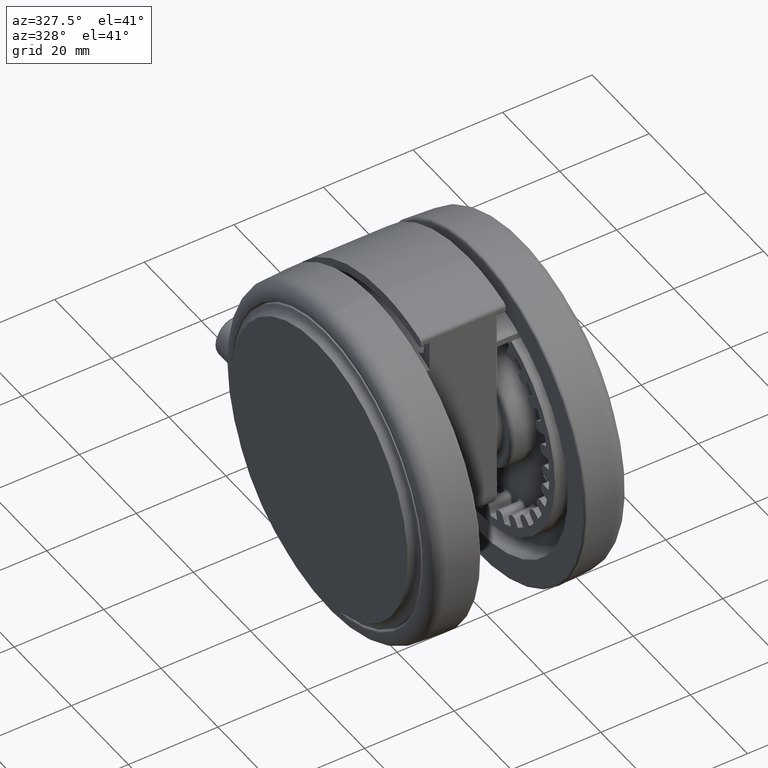
[diagram: clean part render]
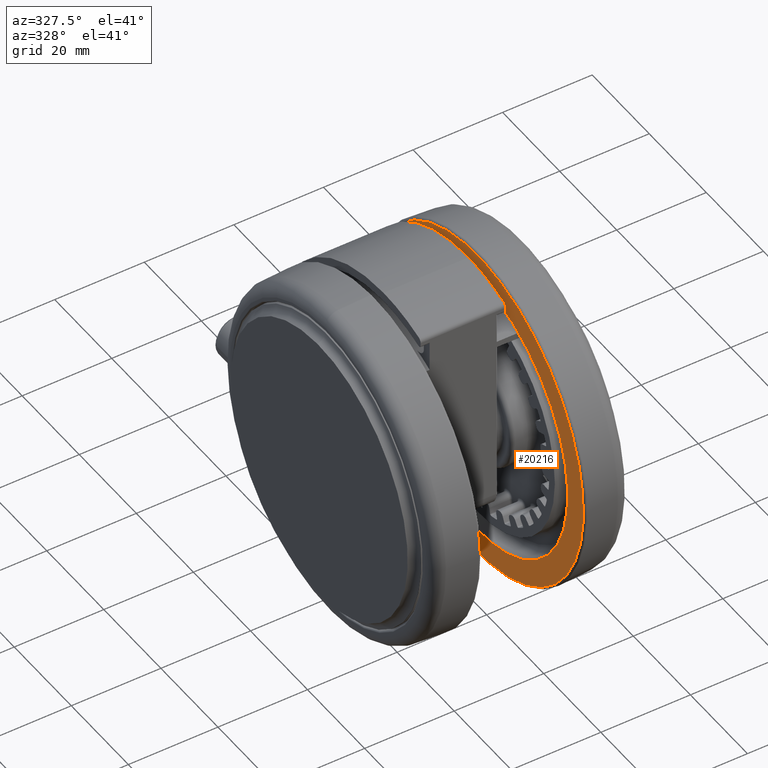
[diagram: same view with one face highlighted and labeled with its STEP entity id]
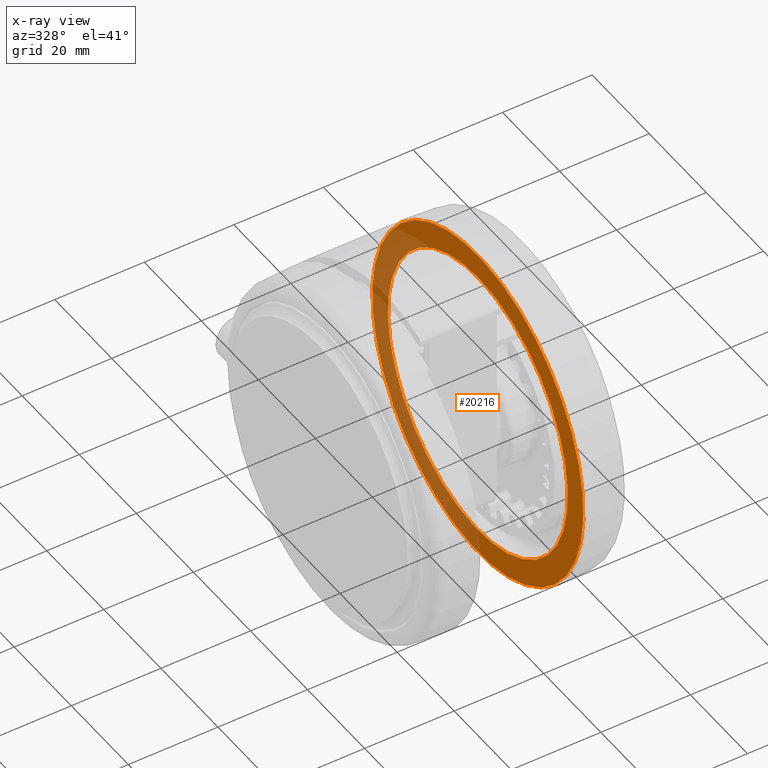
[diagram: x-ray of the same camera — body ghosted, the highlighted face saturated]
A machine part, auxiliary view. The second image highlights one B-rep face of the part: STEP entity #20216.
The next image is the same camera in x-ray: the body ghosted, the highlighted face saturated — about 38% of this face is hidden behind the body in this view.
In plain terms, the highlighted planar face has unit normal (-1, 0, 0).
Its self-contained STEP definition (entity closure, byte-faithful):
#256 = CIRCLE ( 'NONE', #13411, 37.00068523262270800 ) ;
#1498 = EDGE_CURVE ( 'NONE', #4168, #19660, #256, .T. ) ;
#4168 = VERTEX_POINT ( 'NONE', #38921 ) ;
#5455 = CARTESIAN_POINT ( 'NONE',  ( -3.816391647148975600E-014, -3.469446951953614200E-014, -12.30000000000001100 ) ) ;
#5847 = VERTEX_POINT ( 'NONE', #8893 ) ;
#8893 = CARTESIAN_POINT ( 'NONE',  ( 6.150635556423367200E-014, -31.50000000000003600, -12.29999999999998300 ) ) ;
#9552 = CARTESIAN_POINT ( 'NONE',  ( -3.816391647148975600E-014, -3.469446951953614200E-014, -12.29999999999998300 ) ) ;
#9971 = DIRECTION ( 'NONE',  ( -3.164135620181695700E-015, 1.000000000000000000, 0.0000000000000000000 ) ) ;
#10439 = EDGE_CURVE ( 'NONE', #16963, #5847, #45741, .T. ) ;
#13411 = AXIS2_PLACEMENT_3D ( 'NONE', #5455, #36826, #9971 ) ;
#14090 = DIRECTION ( 'NONE',  ( 3.164135620181696100E-015, -1.000000000000000000, 0.0000000000000000000 ) ) ;
#14888 = PLANE ( 'NONE',  #51587 ) ;
#16628 = EDGE_CURVE ( 'NONE', #5847, #16963, #33881, .T. ) ;
#16963 = VERTEX_POINT ( 'NONE', #44796 ) ;
#18368 = ORIENTED_EDGE ( 'NONE', *, *, #26198, .F. ) ;
#19352 = DIRECTION ( 'NONE',  ( 0.0000000000000000000, 0.0000000000000000000, -1.000000000000000000 ) ) ;
#19612 = CARTESIAN_POINT ( 'NONE',  ( -3.816391647148975600E-014, -3.469446951953614200E-014, -12.30000000000001100 ) ) ;
#19660 = VERTEX_POINT ( 'NONE', #30972 ) ;
#20216 = ADVANCED_FACE ( 'NONE', ( #39926, #41311 ), #14888, .T. ) ;
#22042 = ORIENTED_EDGE ( 'NONE', *, *, #16628, .F. ) ;
#22662 = CARTESIAN_POINT ( 'NONE',  ( -3.816391647148975600E-014, -3.469446951953614200E-014, -12.29999999999998300 ) ) ;
#23384 = AXIS2_PLACEMENT_3D ( 'NONE', #22662, #53995, #27164 ) ;
#24105 = DIRECTION ( 'NONE',  ( -3.164135620181695700E-015, 1.000000000000000000, 0.0000000000000000000 ) ) ;
#24427 = AXIS2_PLACEMENT_3D ( 'NONE', #9552, #40907, #14090 ) ;
#26198 = EDGE_CURVE ( 'NONE', #19660, #4168, #41293, .T. ) ;
#27164 = DIRECTION ( 'NONE',  ( 3.164135620181696100E-015, -1.000000000000000000, 0.0000000000000000000 ) ) ;
#28165 = CARTESIAN_POINT ( 'NONE',  ( -1.552391025871621200E-013, 37.00068523262267200, -12.29999999999999500 ) ) ;
#30972 = CARTESIAN_POINT ( 'NONE',  ( 7.513936817953241900E-014, -37.00068523262273600, -12.30000000000001100 ) ) ;
#33881 = CIRCLE ( 'NONE', #24427, 31.50000000000000000 ) ;
#36826 = DIRECTION ( 'NONE',  ( 0.0000000000000000000, 0.0000000000000000000, 1.000000000000000000 ) ) ;
#38921 = CARTESIAN_POINT ( 'NONE',  ( -1.552391025871621200E-013, 37.00068523262267200, -12.30000000000001100 ) ) ;
#39926 = FACE_OUTER_BOUND ( 'NONE', #48167, .T. ) ;
#40289 = EDGE_LOOP ( 'NONE', ( #22042, #54500 ) ) ;
#40455 = AXIS2_PLACEMENT_3D ( 'NONE', #19612, #50922, #24105 ) ;
#40675 = ORIENTED_EDGE ( 'NONE', *, *, #1498, .F. ) ;
#40907 = DIRECTION ( 'NONE',  ( -0.0000000000000000000, 0.0000000000000000000, -1.000000000000000000 ) ) ;
#41293 = CIRCLE ( 'NONE', #40455, 37.00068523262270800 ) ;
#41311 = FACE_BOUND ( 'NONE', #40289, .T. ) ;
#44796 = CARTESIAN_POINT ( 'NONE',  ( -1.416918259245273300E-013, 31.49999999999996400, -12.29999999999998300 ) ) ;
#45741 = CIRCLE ( 'NONE', #23384, 31.50000000000000000 ) ;
#48167 = EDGE_LOOP ( 'NONE', ( #40675, #18368 ) ) ;
#50672 = DIRECTION ( 'NONE',  ( 3.164135620181696100E-015, -1.000000000000000000, 0.0000000000000000000 ) ) ;
#50922 = DIRECTION ( 'NONE',  ( 0.0000000000000000000, 0.0000000000000000000, 1.000000000000000000 ) ) ;
#51587 = AXIS2_PLACEMENT_3D ( 'NONE', #28165, #19352, #50672 ) ;
#53995 = DIRECTION ( 'NONE',  ( -0.0000000000000000000, 0.0000000000000000000, -1.000000000000000000 ) ) ;
#54500 = ORIENTED_EDGE ( 'NONE', *, *, #10439, .F. ) ;